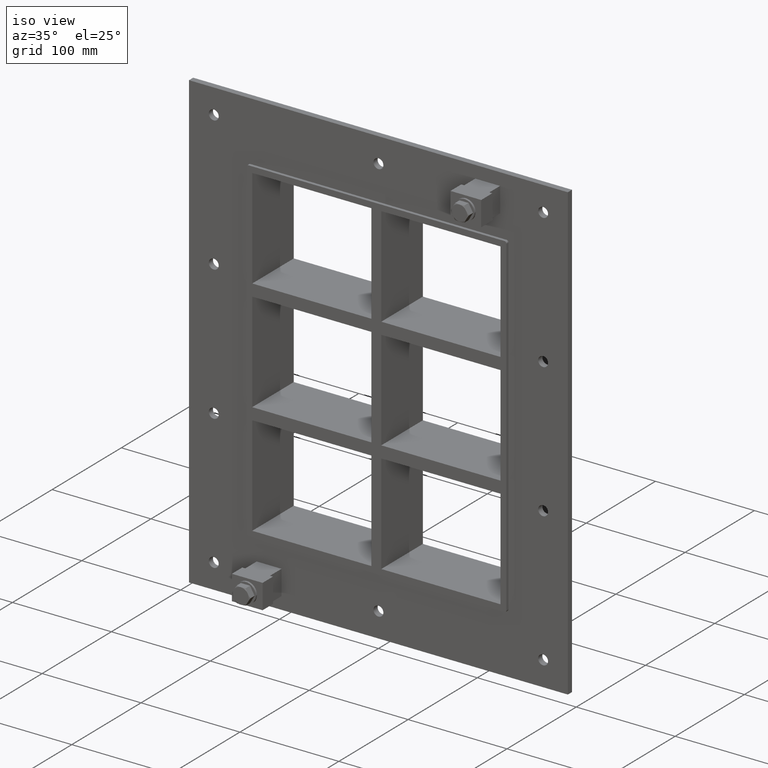
[diagram: clean part render]
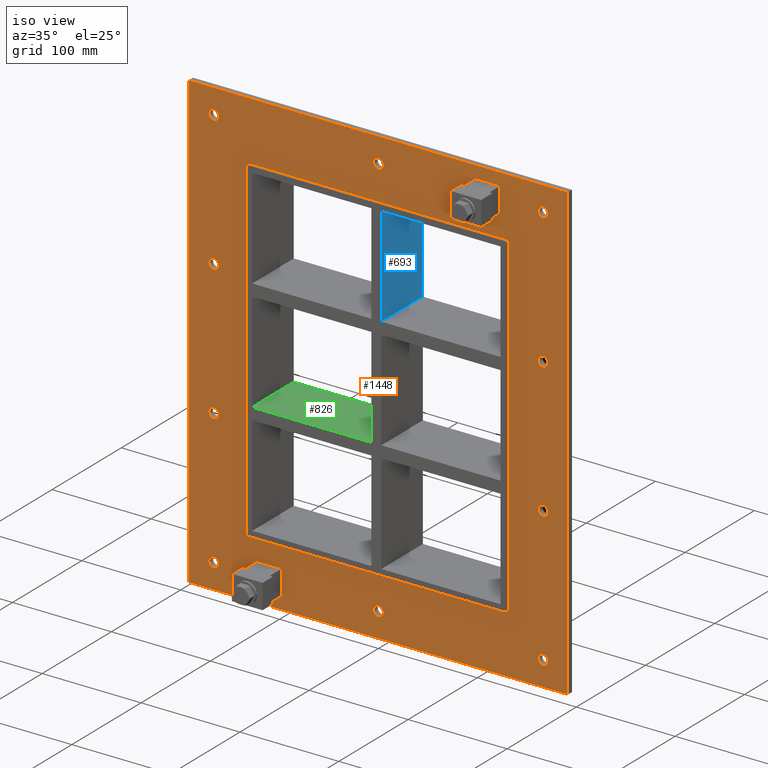
[diagram: same view with three faces highlighted in distinct colors, each labeled with its STEP entity id]
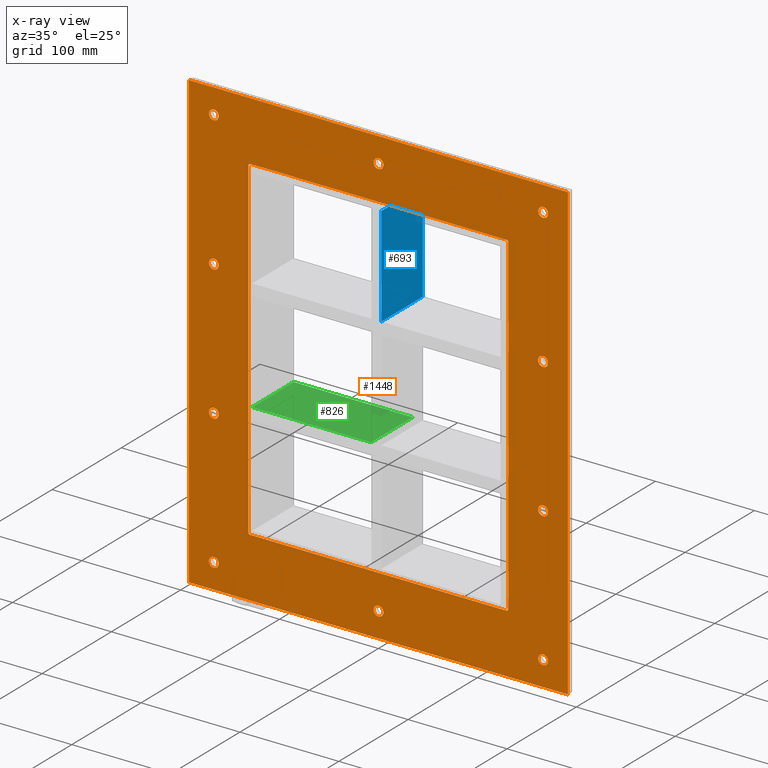
[diagram: x-ray of the same camera — body ghosted, the three highlighted faces saturated]
A machine part, iso view with three faces highlighted in distinct colors.
The next image is the same camera in x-ray (body ghosted, the three faces saturated) — at least one of them is partly hidden behind the body in this view.
Their STEP definitions:

[orange] entity #1448 — the highlighted planar face has unit normal (0, 1, 0).
#84=CARTESIAN_POINT('',(-161.50000000000011,0.0,-204.5));
#85=VERTEX_POINT('',#84);
#86=CARTESIAN_POINT('',(-166.50000000000011,0.0,-204.5));
#87=DIRECTION('',(0.0,1.0,0.0));
#88=DIRECTION('',(1.0,0.0,0.0));
#89=AXIS2_PLACEMENT_3D('',#86,#87,#88);
#90=CIRCLE('',#89,5.0);
#91=EDGE_CURVE('',#85,#85,#90,.T.);
#112=CARTESIAN_POINT('',(171.49999999999991,0.0,-68.19999999999996));
#113=VERTEX_POINT('',#112);
#114=CARTESIAN_POINT('',(166.49999999999991,0.0,-68.19999999999996));
#115=DIRECTION('',(0.0,1.0,0.0));
#116=DIRECTION('',(1.0,0.0,0.0));
#117=AXIS2_PLACEMENT_3D('',#114,#115,#116);
#118=CIRCLE('',#117,5.0);
#119=EDGE_CURVE('',#113,#113,#118,.T.);
#140=CARTESIAN_POINT('',(-161.50000000000011,0.0,-68.19999999999996));
#141=VERTEX_POINT('',#140);
#142=CARTESIAN_POINT('',(-166.50000000000011,0.0,-68.19999999999996));
#143=DIRECTION('',(0.0,1.0,0.0));
#144=DIRECTION('',(1.0,0.0,0.0));
#145=AXIS2_PLACEMENT_3D('',#142,#143,#144);
#146=CIRCLE('',#145,5.0);
#147=EDGE_CURVE('',#141,#141,#146,.T.);
#168=CARTESIAN_POINT('',(171.49999999999991,0.0,68.100000000000051));
#169=VERTEX_POINT('',#168);
#170=CARTESIAN_POINT('',(166.49999999999991,0.0,68.100000000000051));
#171=DIRECTION('',(0.0,1.0,0.0));
#172=DIRECTION('',(1.0,0.0,0.0));
#173=AXIS2_PLACEMENT_3D('',#170,#171,#172);
#174=CIRCLE('',#173,5.0);
#175=EDGE_CURVE('',#169,#169,#174,.T.);
#196=CARTESIAN_POINT('',(-161.50000000000011,0.0,68.100000000000051));
#197=VERTEX_POINT('',#196);
#198=CARTESIAN_POINT('',(-166.50000000000011,0.0,68.100000000000051));
#199=DIRECTION('',(0.0,1.0,0.0));
#200=DIRECTION('',(1.0,0.0,0.0));
#201=AXIS2_PLACEMENT_3D('',#198,#199,#200);
#202=CIRCLE('',#201,5.0);
#203=EDGE_CURVE('',#197,#197,#202,.T.);
#224=CARTESIAN_POINT('',(4.999999999999893,0.0,204.40000000000009));
#225=VERTEX_POINT('',#224);
#226=CARTESIAN_POINT('',(-1.065814E-013,0.0,204.40000000000009));
#227=DIRECTION('',(0.0,1.0,0.0));
#228=DIRECTION('',(1.0,0.0,0.0));
#229=AXIS2_PLACEMENT_3D('',#226,#227,#228);
#230=CIRCLE('',#229,5.0);
#231=EDGE_CURVE('',#225,#225,#230,.T.);
#252=CARTESIAN_POINT('',(4.999999999999893,0.0,-204.50000000000003));
#253=VERTEX_POINT('',#252);
#254=CARTESIAN_POINT('',(-1.065814E-013,0.0,-204.50000000000003));
#255=DIRECTION('',(0.0,1.0,0.0));
#256=DIRECTION('',(1.0,0.0,0.0));
#257=AXIS2_PLACEMENT_3D('',#254,#255,#256);
#258=CIRCLE('',#257,5.0);
#259=EDGE_CURVE('',#253,#253,#258,.T.);
#280=CARTESIAN_POINT('',(171.49999999999991,0.0,-204.50000000000003));
#281=VERTEX_POINT('',#280);
#282=CARTESIAN_POINT('',(166.49999999999991,0.0,-204.50000000000003));
#283=DIRECTION('',(0.0,1.0,0.0));
#284=DIRECTION('',(1.0,0.0,0.0));
#285=AXIS2_PLACEMENT_3D('',#282,#283,#284);
#286=CIRCLE('',#285,5.0);
#287=EDGE_CURVE('',#281,#281,#286,.T.);
#308=CARTESIAN_POINT('',(-161.50000000000011,0.0,204.40000000000009));
#309=VERTEX_POINT('',#308);
#310=CARTESIAN_POINT('',(-166.50000000000011,0.0,204.40000000000009));
#311=DIRECTION('',(0.0,1.0,0.0));
#312=DIRECTION('',(1.0,0.0,0.0));
#313=AXIS2_PLACEMENT_3D('',#310,#311,#312);
#314=CIRCLE('',#313,5.0);
#315=EDGE_CURVE('',#309,#309,#314,.T.);
#336=CARTESIAN_POINT('',(171.49999999999991,0.0,204.40000000000009));
#337=VERTEX_POINT('',#336);
#338=CARTESIAN_POINT('',(166.49999999999991,0.0,204.40000000000009));
#339=DIRECTION('',(0.0,1.0,0.0));
#340=DIRECTION('',(1.0,0.0,0.0));
#341=AXIS2_PLACEMENT_3D('',#338,#339,#340);
#342=CIRCLE('',#341,5.0);
#343=EDGE_CURVE('',#337,#337,#342,.T.);
#1309=CARTESIAN_POINT('',(2.025300E-014,0.0,-2.025300E-014));
#1310=DIRECTION('',(0.0,1.0,0.0));
#1311=DIRECTION('',(0.0,0.0,1.0));
#1312=AXIS2_PLACEMENT_3D('',#1309,#1310,#1311);
#1313=PLANE('',#1312);
#1314=CARTESIAN_POINT('',(-191.5,0.0,229.5));
#1315=VERTEX_POINT('',#1314);
#1316=CARTESIAN_POINT('',(191.50000000000003,0.0,229.5));
#1317=VERTEX_POINT('',#1316);
#1318=CARTESIAN_POINT('',(-191.5,0.0,229.5));
#1319=DIRECTION('',(1.0,0.0,0.0));
#1320=VECTOR('',#1319,383.0);
#1321=LINE('',#1318,#1320);
#1322=EDGE_CURVE('',#1315,#1317,#1321,.T.);
#1323=ORIENTED_EDGE('',*,*,#1322,.F.);
#1324=CARTESIAN_POINT('',(-191.5,0.0,-229.50000000000003));
#1325=VERTEX_POINT('',#1324);
#1326=CARTESIAN_POINT('',(-191.5,0.0,-229.50000000000003));
#1327=DIRECTION('',(0.0,0.0,1.0));
#1328=VECTOR('',#1327,459.00000000000006);
#1329=LINE('',#1326,#1328);
#1330=EDGE_CURVE('',#1325,#1315,#1329,.T.);
#1331=ORIENTED_EDGE('',*,*,#1330,.F.);
#1332=CARTESIAN_POINT('',(191.50000000000003,0.0,-229.50000000000003));
#1333=VERTEX_POINT('',#1332);
#1334=CARTESIAN_POINT('',(191.50000000000003,0.0,-229.50000000000003));
#1335=DIRECTION('',(-1.0,0.0,0.0));
#1336=VECTOR('',#1335,383.0);
#1337=LINE('',#1334,#1336);
#1338=EDGE_CURVE('',#1333,#1325,#1337,.T.);
#1339=ORIENTED_EDGE('',*,*,#1338,.F.);
#1340=CARTESIAN_POINT('',(191.50000000000003,0.0,229.5));
#1341=DIRECTION('',(0.0,0.0,-1.0));
#1342=VECTOR('',#1341,459.00000000000006);
#1343=LINE('',#1340,#1342);
#1344=EDGE_CURVE('',#1317,#1333,#1343,.T.);
#1345=ORIENTED_EDGE('',*,*,#1344,.F.);
#1346=EDGE_LOOP('',(#1323,#1331,#1339,#1345));
#1347=FACE_OUTER_BOUND('',#1346,.T.);
#1348=ORIENTED_EDGE('',*,*,#91,.T.);
#1349=EDGE_LOOP('',(#1348));
#1350=FACE_BOUND('',#1349,.T.);
#1351=ORIENTED_EDGE('',*,*,#119,.T.);
#1352=EDGE_LOOP('',(#1351));
#1353=FACE_BOUND('',#1352,.T.);
#1354=ORIENTED_EDGE('',*,*,#147,.T.);
#1355=EDGE_LOOP('',(#1354));
#1356=FACE_BOUND('',#1355,.T.);
#1357=ORIENTED_EDGE('',*,*,#175,.T.);
#1358=EDGE_LOOP('',(#1357));
#1359=FACE_BOUND('',#1358,.T.);
#1360=ORIENTED_EDGE('',*,*,#203,.T.);
#1361=EDGE_LOOP('',(#1360));
#1362=FACE_BOUND('',#1361,.T.);
#1363=ORIENTED_EDGE('',*,*,#231,.T.);
#1364=EDGE_LOOP('',(#1363));
#1365=FACE_BOUND('',#1364,.T.);
#1366=ORIENTED_EDGE('',*,*,#259,.T.);
#1367=EDGE_LOOP('',(#1366));
#1368=FACE_BOUND('',#1367,.T.);
#1369=ORIENTED_EDGE('',*,*,#287,.T.);
#1370=EDGE_LOOP('',(#1369));
#1371=FACE_BOUND('',#1370,.T.);
#1372=ORIENTED_EDGE('',*,*,#315,.T.);
#1373=EDGE_LOOP('',(#1372));
#1374=FACE_BOUND('',#1373,.T.);
#1375=ORIENTED_EDGE('',*,*,#343,.T.);
#1376=EDGE_LOOP('',(#1375));
#1377=FACE_BOUND('',#1376,.T.);
#1378=CARTESIAN_POINT('',(-129.50000000000003,0.0,169.50000000000003));
#1379=VERTEX_POINT('',#1378);
#1380=CARTESIAN_POINT('',(-131.50000000000003,0.0,167.5));
#1381=VERTEX_POINT('',#1380);
#1382=CARTESIAN_POINT('',(-129.50000000000003,0.0,167.5));
#1383=DIRECTION('',(0.0,-1.0,0.0));
#1384=DIRECTION('',(-0.707106781186541,0.0,0.707106781186554));
#1385=AXIS2_PLACEMENT_3D('',#1382,#1383,#1384);
#1386=CIRCLE('',#1385,2.0);
#1387=EDGE_CURVE('',#1379,#1381,#1386,.T.);
#1388=ORIENTED_EDGE('',*,*,#1387,.F.);
#1389=CARTESIAN_POINT('',(129.5,0.0,169.50000000000003));
#1390=VERTEX_POINT('',#1389);
#1391=CARTESIAN_POINT('',(129.5,0.0,169.50000000000003));
#1392=DIRECTION('',(-1.0,0.0,0.0));
#1393=VECTOR('',#1392,259.0);
#1394=LINE('',#1391,#1393);
#1395=EDGE_CURVE('',#1390,#1379,#1394,.T.);
#1396=ORIENTED_EDGE('',*,*,#1395,.F.);
#1397=CARTESIAN_POINT('',(131.5,0.0,167.50000000000003));
#1398=VERTEX_POINT('',#1397);
#1399=CARTESIAN_POINT('',(129.5,0.0,167.50000000000003));
#1400=DIRECTION('',(0.0,-1.0,0.0));
#1401=DIRECTION('',(0.707106781186554,0.0,0.707106781186541));
#1402=AXIS2_PLACEMENT_3D('',#1399,#1400,#1401);
#1403=CIRCLE('',#1402,2.0);
#1404=EDGE_CURVE('',#1398,#1390,#1403,.T.);
#1405=ORIENTED_EDGE('',*,*,#1404,.F.);
#1406=CARTESIAN_POINT('',(131.5,0.0,-167.5));
#1407=VERTEX_POINT('',#1406);
#1408=CARTESIAN_POINT('',(131.5,0.0,-167.5));
#1409=DIRECTION('',(0.0,0.0,1.0));
#1410=VECTOR('',#1409,335.00000000000006);
#1411=LINE('',#1408,#1410);
#1412=EDGE_CURVE('',#1407,#1398,#1411,.T.);
#1413=ORIENTED_EDGE('',*,*,#1412,.F.);
#1414=CARTESIAN_POINT('',(129.5,0.0,-169.50000000000003));
#1415=VERTEX_POINT('',#1414);
#1416=CARTESIAN_POINT('',(129.5,0.0,-167.5));
#1417=DIRECTION('',(0.0,-1.0,0.0));
#1418=DIRECTION('',(0.707106781186541,0.0,-0.707106781186554));
#1419=AXIS2_PLACEMENT_3D('',#1416,#1417,#1418);
#1420=CIRCLE('',#1419,2.0);
#1421=EDGE_CURVE('',#1415,#1407,#1420,.T.);
#1422=ORIENTED_EDGE('',*,*,#1421,.F.);
#1423=CARTESIAN_POINT('',(-129.50000000000003,0.0,-169.50000000000003));
#1424=VERTEX_POINT('',#1423);
#1425=CARTESIAN_POINT('',(-129.50000000000003,0.0,-169.50000000000003));
#1426=DIRECTION('',(1.0,0.0,0.0));
#1427=VECTOR('',#1426,259.0);
#1428=LINE('',#1425,#1427);
#1429=EDGE_CURVE('',#1424,#1415,#1428,.T.);
#1430=ORIENTED_EDGE('',*,*,#1429,.F.);
#1431=CARTESIAN_POINT('',(-131.50000000000003,0.0,-167.5));
#1432=VERTEX_POINT('',#1431);
#1433=CARTESIAN_POINT('',(-129.50000000000003,0.0,-167.5));
#1434=DIRECTION('',(0.0,-1.0,0.0));
#1435=DIRECTION('',(-0.707106781186541,0.0,-0.707106781186554));
#1436=AXIS2_PLACEMENT_3D('',#1433,#1434,#1435);
#1437=CIRCLE('',#1436,2.0);
#1438=EDGE_CURVE('',#1432,#1424,#1437,.T.);
#1439=ORIENTED_EDGE('',*,*,#1438,.F.);
#1440=CARTESIAN_POINT('',(-131.50000000000003,0.0,167.49999999999997));
#1441=DIRECTION('',(0.0,0.0,-1.0));
#1442=VECTOR('',#1441,335.0);
#1443=LINE('',#1440,#1442);
#1444=EDGE_CURVE('',#1381,#1432,#1443,.T.);
#1445=ORIENTED_EDGE('',*,*,#1444,.F.);
#1446=EDGE_LOOP('',(#1388,#1396,#1405,#1413,#1422,#1430,#1439,#1445));
#1447=FACE_BOUND('',#1446,.T.);
#1448=ADVANCED_FACE('',(#1347,#1350,#1353,#1356,#1359,#1362,#1365,#1368,#1371,#1374,#1377,#1447),#1313,.F.);

[blue] entity #693 — the highlighted planar face has unit normal (1, 0, 0).
#393=CARTESIAN_POINT('',(5.0,-3.0,62.500000000000462));
#394=VERTEX_POINT('',#393);
#395=CARTESIAN_POINT('',(5.0,57.0,62.500000000000462));
#396=VERTEX_POINT('',#395);
#397=CARTESIAN_POINT('',(5.0,-3.0,62.500000000000462));
#398=DIRECTION('',(0.0,1.0,0.0));
#399=VECTOR('',#398,60.0);
#400=LINE('',#397,#399);
#401=EDGE_CURVE('',#394,#396,#400,.T.);
#663=CARTESIAN_POINT('',(5.0,-3.0,163.5));
#664=DIRECTION('',(1.0,0.0,0.0));
#665=DIRECTION('',(0.0,0.0,-1.0));
#666=AXIS2_PLACEMENT_3D('',#663,#664,#665);
#667=PLANE('',#666);
#668=ORIENTED_EDGE('',*,*,#401,.T.);
#669=CARTESIAN_POINT('',(5.0,57.0,163.5));
#670=VERTEX_POINT('',#669);
#671=CARTESIAN_POINT('',(5.0,57.0,163.5));
#672=DIRECTION('',(0.0,0.0,-1.0));
#673=VECTOR('',#672,100.99999999999955);
#674=LINE('',#671,#673);
#675=EDGE_CURVE('',#670,#396,#674,.T.);
#676=ORIENTED_EDGE('',*,*,#675,.F.);
#677=CARTESIAN_POINT('',(5.0,-3.0,163.5));
#678=VERTEX_POINT('',#677);
#679=CARTESIAN_POINT('',(5.0,-3.0,163.50000000000006));
#680=DIRECTION('',(0.0,1.0,0.0));
#681=VECTOR('',#680,60.000000000000007);
#682=LINE('',#679,#681);
#683=EDGE_CURVE('',#678,#670,#682,.T.);
#684=ORIENTED_EDGE('',*,*,#683,.F.);
#685=CARTESIAN_POINT('',(5.0,-3.0,163.5));
#686=DIRECTION('',(0.0,0.0,-1.0));
#687=VECTOR('',#686,100.99999999999955);
#688=LINE('',#685,#687);
#689=EDGE_CURVE('',#678,#394,#688,.T.);
#690=ORIENTED_EDGE('',*,*,#689,.T.);
#691=EDGE_LOOP('',(#668,#676,#684,#690));
#692=FACE_OUTER_BOUND('',#691,.T.);
#693=ADVANCED_FACE('',(#692),#667,.T.);

[green] entity #826 — the highlighted planar face has unit normal (0, 0, 1).
#514=CARTESIAN_POINT('',(-125.49999999999876,-3.0,-50.499999999999545));
#515=VERTEX_POINT('',#514);
#522=CARTESIAN_POINT('',(-125.49999999999876,57.0,-50.499999999999545));
#523=VERTEX_POINT('',#522);
#524=CARTESIAN_POINT('',(-125.5,-3.0,-50.499999999999545));
#525=DIRECTION('',(0.0,1.0,0.0));
#526=VECTOR('',#525,60.000000000000007);
#527=LINE('',#524,#526);
#528=EDGE_CURVE('',#515,#523,#527,.T.);
#638=CARTESIAN_POINT('',(-5.000000000000373,57.0,-50.499999999999545));
#639=VERTEX_POINT('',#638);
#646=CARTESIAN_POINT('',(-5.000000000000373,-3.0,-50.499999999999545));
#647=VERTEX_POINT('',#646);
#648=CARTESIAN_POINT('',(-5.000000000000373,57.0,-50.499999999999545));
#649=DIRECTION('',(0.0,-1.0,0.0));
#650=VECTOR('',#649,60.0);
#651=LINE('',#648,#650);
#652=EDGE_CURVE('',#639,#647,#651,.T.);
#805=CARTESIAN_POINT('',(-125.49999999999876,-3.0,-50.499999999999545));
#806=DIRECTION('',(0.0,0.0,1.0));
#807=DIRECTION('',(1.0,0.0,0.0));
#808=AXIS2_PLACEMENT_3D('',#805,#806,#807);
#809=PLANE('',#808);
#810=ORIENTED_EDGE('',*,*,#652,.F.);
#811=CARTESIAN_POINT('',(-125.49999999999876,57.0,-50.499999999999545));
#812=DIRECTION('',(1.0,0.0,0.0));
#813=VECTOR('',#812,120.49999999999839);
#814=LINE('',#811,#813);
#815=EDGE_CURVE('',#523,#639,#814,.T.);
#816=ORIENTED_EDGE('',*,*,#815,.F.);
#817=ORIENTED_EDGE('',*,*,#528,.F.);
#818=CARTESIAN_POINT('',(-125.49999999999876,-3.0,-50.499999999999545));
#819=DIRECTION('',(1.0,0.0,0.0));
#820=VECTOR('',#819,120.49999999999839);
#821=LINE('',#818,#820);
#822=EDGE_CURVE('',#515,#647,#821,.T.);
#823=ORIENTED_EDGE('',*,*,#822,.T.);
#824=EDGE_LOOP('',(#810,#816,#817,#823));
#825=FACE_OUTER_BOUND('',#824,.T.);
#826=ADVANCED_FACE('',(#825),#809,.T.);